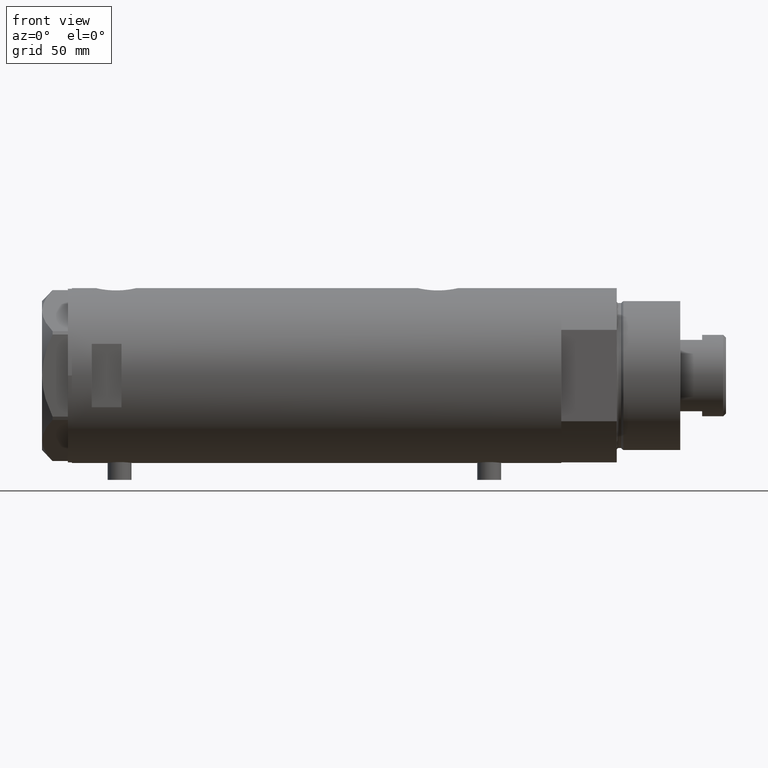
[diagram: clean part render]
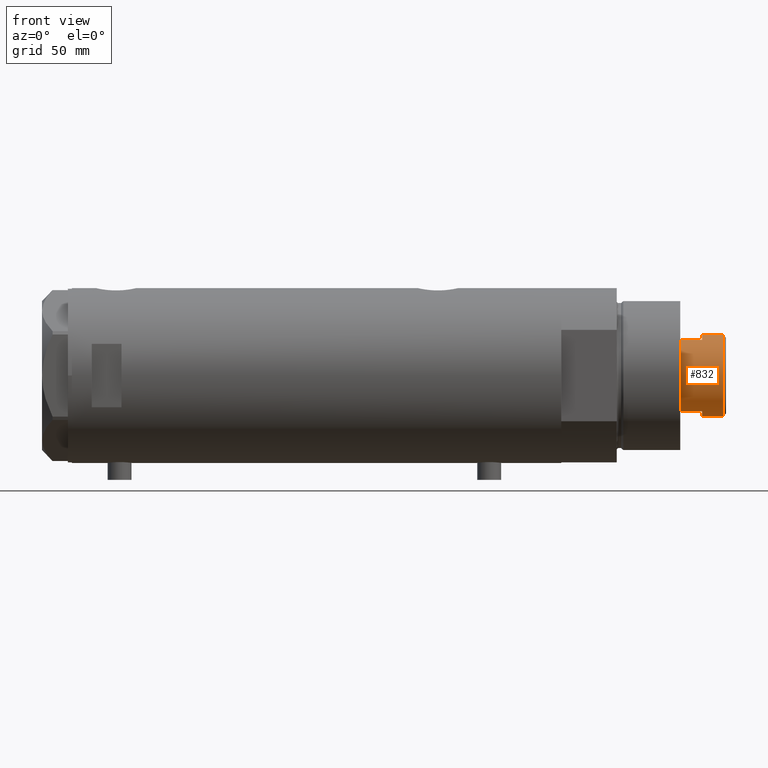
[diagram: same view with one face highlighted and labeled with its STEP entity id]
A machine part, front view. The second image highlights one B-rep face of the part: STEP entity #832.
In plain terms, the highlighted cylindrical surface (partial cylindrical patch) has radius 20.5 mm, axis along (-1, -0, 0).
Its self-contained STEP definition (entity closure, byte-faithful):
#229 = DIRECTION ( 'NONE',  ( 1.000000000000000000, 0.000000000000000000, 0.000000000000000000 ) ) ;
#243 = VERTEX_POINT ( 'NONE', #3043 ) ;
#337 = EDGE_CURVE ( 'NONE', #2594, #243, #893, .T. ) ;
#353 = VERTEX_POINT ( 'NONE', #2322 ) ;
#415 = CARTESIAN_POINT ( 'NONE',  ( 20.50000000000000355, 2.510525938252074481E-15, 291.3000000000000114 ) ) ;
#465 = ORIENTED_EDGE ( 'NONE', *, *, #1357, .T. ) ;
#480 = CARTESIAN_POINT ( 'NONE',  ( 20.50000000000000000, 2.510525938252074481E-15, 291.3000000000000114 ) ) ;
#523 = CARTESIAN_POINT ( 'NONE',  ( -20.50000000000000355, 0.000000000000000000, 301.8999999999999773 ) ) ;
#533 = VERTEX_POINT ( 'NONE', #480 ) ;
#592 = CARTESIAN_POINT ( 'NONE',  ( 17.97852886083843060, -9.849999999999994316, 291.3000000000000114 ) ) ;
#666 = AXIS2_PLACEMENT_3D ( 'NONE', #1595, #4398, #1260 ) ;
#684 = EDGE_LOOP ( 'NONE', ( #3421, #1958, #3596, #1767, #2418, #3760, #3376, #465 ) ) ;
#759 = EDGE_CURVE ( 'NONE', #1677, #3989, #2682, .T. ) ;
#832 = ADVANCED_FACE ( 'NONE', ( #912 ), #4403, .T. ) ;
#841 = EDGE_CURVE ( 'NONE', #3569, #1998, #3743, .T. ) ;
#893 = LINE ( 'NONE', #1266, #1954 ) ;
#912 = FACE_OUTER_BOUND ( 'NONE', #684, .T. ) ;
#1223 = EDGE_CURVE ( 'NONE', #353, #533, #3568, .T. ) ;
#1260 = DIRECTION ( 'NONE',  ( 1.000000000000000000, 0.000000000000000000, 0.000000000000000000 ) ) ;
#1263 = DIRECTION ( 'NONE',  ( -0.000000000000000000, -0.000000000000000000, -1.000000000000000000 ) ) ;
#1266 = CARTESIAN_POINT ( 'NONE',  ( -20.50000000000000355, 0.000000000000000000, 291.3000000000000114 ) ) ;
#1280 = DIRECTION ( 'NONE',  ( -1.000000000000000000, 0.000000000000000000, 0.000000000000000000 ) ) ;
#1357 = EDGE_CURVE ( 'NONE', #3569, #533, #1676, .T. ) ;
#1595 = CARTESIAN_POINT ( 'NONE',  ( 0.000000000000000000, 0.000000000000000000, 301.8999999999999773 ) ) ;
#1676 = CIRCLE ( 'NONE', #2426, 20.50000000000000000 ) ;
#1677 = VERTEX_POINT ( 'NONE', #3452 ) ;
#1767 = ORIENTED_EDGE ( 'NONE', *, *, #4368, .T. ) ;
#1811 = DIRECTION ( 'NONE',  ( -0.000000000000000000, -0.000000000000000000, -1.000000000000000000 ) ) ;
#1812 = VECTOR ( 'NONE', #1989, 1000.000000000000000 ) ;
#1954 = VECTOR ( 'NONE', #3434, 1000.000000000000000 ) ;
#1958 = ORIENTED_EDGE ( 'NONE', *, *, #2039, .T. ) ;
#1981 = DIRECTION ( 'NONE',  ( 0.000000000000000000, 0.000000000000000000, 1.000000000000000000 ) ) ;
#1989 = DIRECTION ( 'NONE',  ( -0.000000000000000000, -0.000000000000000000, -1.000000000000000000 ) ) ;
#1998 = VERTEX_POINT ( 'NONE', #3307 ) ;
#2012 = CARTESIAN_POINT ( 'NONE',  ( 0.000000000000000000, 0.000000000000000000, 280.3000000000000114 ) ) ;
#2039 = EDGE_CURVE ( 'NONE', #353, #2594, #2805, .T. ) ;
#2322 = CARTESIAN_POINT ( 'NONE',  ( 20.50000000000000355, 2.510525938252074481E-15, 301.8999999999999773 ) ) ;
#2323 = DIRECTION ( 'NONE',  ( 1.000000000000000000, 0.000000000000000000, 0.000000000000000000 ) ) ;
#2334 = CARTESIAN_POINT ( 'NONE',  ( 0.000000000000000000, 0.000000000000000000, 291.3000000000000114 ) ) ;
#2342 = DIRECTION ( 'NONE',  ( -0.000000000000000000, -0.000000000000000000, -1.000000000000000000 ) ) ;
#2418 = ORIENTED_EDGE ( 'NONE', *, *, #759, .T. ) ;
#2423 = AXIS2_PLACEMENT_3D ( 'NONE', #4422, #2342, #1280 ) ;
#2426 = AXIS2_PLACEMENT_3D ( 'NONE', #3988, #4079, #3686 ) ;
#2586 = AXIS2_PLACEMENT_3D ( 'NONE', #2334, #1981, #229 ) ;
#2588 = EDGE_CURVE ( 'NONE', #3989, #1998, #4548, .T. ) ;
#2594 = VERTEX_POINT ( 'NONE', #523 ) ;
#2682 = LINE ( 'NONE', #3039, #3654 ) ;
#2805 = CIRCLE ( 'NONE', #666, 20.50000000000000355 ) ;
#3039 = CARTESIAN_POINT ( 'NONE',  ( -17.97852886083842350, -9.850000000000001421, 291.3000000000000114 ) ) ;
#3043 = CARTESIAN_POINT ( 'NONE',  ( -20.50000000000000000, 0.000000000000000000, 291.3000000000000114 ) ) ;
#3307 = CARTESIAN_POINT ( 'NONE',  ( 17.97852886083843060, -9.850000000000243006, 280.3000000000000114 ) ) ;
#3341 = DIRECTION ( 'NONE',  ( 0.000000000000000000, 0.000000000000000000, 1.000000000000000000 ) ) ;
#3376 = ORIENTED_EDGE ( 'NONE', *, *, #841, .F. ) ;
#3378 = CARTESIAN_POINT ( 'NONE',  ( 17.97852886083843060, -9.849999999999994316, 291.3000000000000114 ) ) ;
#3421 = ORIENTED_EDGE ( 'NONE', *, *, #1223, .F. ) ;
#3434 = DIRECTION ( 'NONE',  ( -0.000000000000000000, -0.000000000000000000, -1.000000000000000000 ) ) ;
#3452 = CARTESIAN_POINT ( 'NONE',  ( -17.97852886083842705, -9.849999999999996092, 291.3000000000000114 ) ) ;
#3568 = LINE ( 'NONE', #415, #4316 ) ;
#3569 = VERTEX_POINT ( 'NONE', #3378 ) ;
#3596 = ORIENTED_EDGE ( 'NONE', *, *, #337, .T. ) ;
#3654 = VECTOR ( 'NONE', #1263, 1000.000000000000000 ) ;
#3686 = DIRECTION ( 'NONE',  ( 1.000000000000000000, 0.000000000000000000, 0.000000000000000000 ) ) ;
#3743 = LINE ( 'NONE', #592, #1812 ) ;
#3760 = ORIENTED_EDGE ( 'NONE', *, *, #2588, .T. ) ;
#3864 = CARTESIAN_POINT ( 'NONE',  ( -17.97852886083842350, -9.850000000000253664, 280.3000000000000114 ) ) ;
#3971 = CIRCLE ( 'NONE', #2586, 20.50000000000000000 ) ;
#3988 = CARTESIAN_POINT ( 'NONE',  ( 0.000000000000000000, 0.000000000000000000, 291.3000000000000114 ) ) ;
#3989 = VERTEX_POINT ( 'NONE', #3864 ) ;
#4079 = DIRECTION ( 'NONE',  ( 0.000000000000000000, 0.000000000000000000, 1.000000000000000000 ) ) ;
#4316 = VECTOR ( 'NONE', #1811, 1000.000000000000000 ) ;
#4368 = EDGE_CURVE ( 'NONE', #243, #1677, #3971, .T. ) ;
#4398 = DIRECTION ( 'NONE',  ( 0.000000000000000000, 0.000000000000000000, -1.000000000000000000 ) ) ;
#4401 = AXIS2_PLACEMENT_3D ( 'NONE', #2012, #3341, #2323 ) ;
#4403 = CYLINDRICAL_SURFACE ( 'NONE', #2423, 20.50000000000000355 ) ;
#4422 = CARTESIAN_POINT ( 'NONE',  ( 0.000000000000000000, 0.000000000000000000, 291.3000000000000114 ) ) ;
#4548 = CIRCLE ( 'NONE', #4401, 20.50000000000000355 ) ;